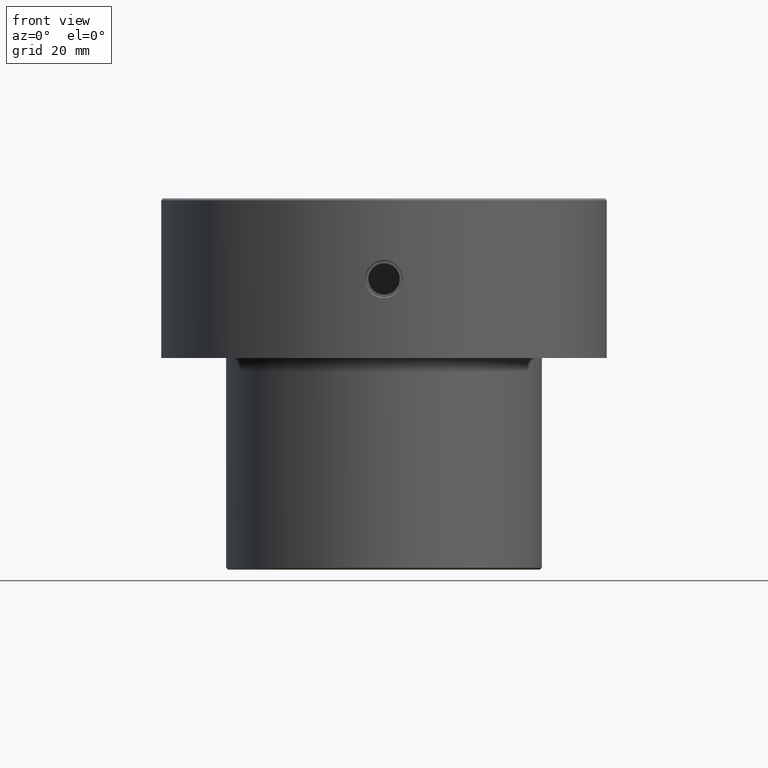
[diagram: clean part render]
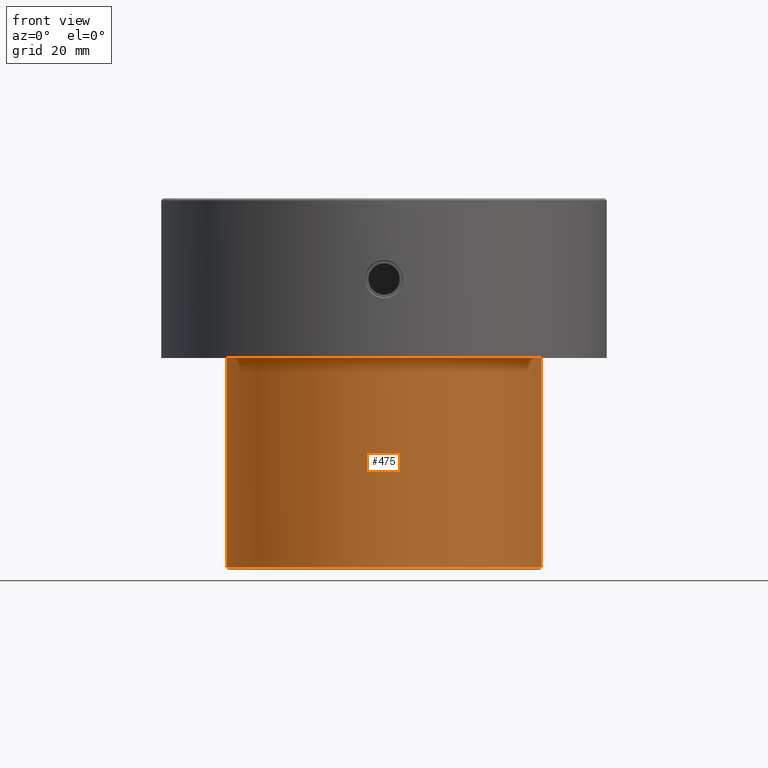
[diagram: same view with one face highlighted and labeled with its STEP entity id]
A machine part, front view. The second image highlights one B-rep face of the part: STEP entity #475.
In plain terms, the highlighted cylindrical surface (partial cylindrical patch) has radius 42.5 mm, axis along (-0, -0, 1).
Its self-contained STEP definition (entity closure, byte-faithful):
#117 = CIRCLE ( 'NONE', #610, 42.50000000000000000 ) ;
#161 = DIRECTION ( 'NONE',  ( -0.000000000000000000, -0.000000000000000000, 1.000000000000000000 ) ) ;
#234 = VERTEX_POINT ( 'NONE', #1193 ) ;
#287 = CARTESIAN_POINT ( 'NONE',  ( 0.000000000000000000, 0.000000000000000000, 0.000000000000000000 ) ) ;
#325 = VECTOR ( 'NONE', #1101, 1000.000000000000000 ) ;
#336 = AXIS2_PLACEMENT_3D ( 'NONE', #287, #667, #1050 ) ;
#368 = ORIENTED_EDGE ( 'NONE', *, *, #858, .T. ) ;
#414 = VECTOR ( 'NONE', #466, 1000.000000000000000 ) ;
#427 = VERTEX_POINT ( 'NONE', #761 ) ;
#452 = ORIENTED_EDGE ( 'NONE', *, *, #797, .F. ) ;
#466 = DIRECTION ( 'NONE',  ( -0.000000000000000000, -0.000000000000000000, 1.000000000000000000 ) ) ;
#473 = CARTESIAN_POINT ( 'NONE',  ( -42.50000000000000000, 5.204748896376250896E-15, -99.50000000000000000 ) ) ;
#475 = ADVANCED_FACE ( 'NONE', ( #1157 ), #1150, .T. ) ;
#480 = VERTEX_POINT ( 'NONE', #1143 ) ;
#493 = DIRECTION ( 'NONE',  ( 1.000000000000000000, 0.000000000000000000, 0.000000000000000000 ) ) ;
#515 = EDGE_LOOP ( 'NONE', ( #452, #1162, #368, #600 ) ) ;
#600 = ORIENTED_EDGE ( 'NONE', *, *, #1060, .F. ) ;
#610 = AXIS2_PLACEMENT_3D ( 'NONE', #1163, #161, #952 ) ;
#667 = DIRECTION ( 'NONE',  ( -0.000000000000000000, -0.000000000000000000, 1.000000000000000000 ) ) ;
#761 = CARTESIAN_POINT ( 'NONE',  ( 42.50000000000000000, 0.000000000000000000, -99.50000000000000000 ) ) ;
#797 = EDGE_CURVE ( 'NONE', #955, #234, #1117, .T. ) ;
#842 = LINE ( 'NONE', #849, #414 ) ;
#849 = CARTESIAN_POINT ( 'NONE',  ( 42.50000000000000000, 0.000000000000000000, 0.000000000000000000 ) ) ;
#858 = EDGE_CURVE ( 'NONE', #427, #480, #842, .T. ) ;
#899 = CIRCLE ( 'NONE', #1014, 42.50000000000000000 ) ;
#941 = EDGE_CURVE ( 'NONE', #955, #427, #117, .T. ) ;
#952 = DIRECTION ( 'NONE',  ( -1.000000000000000000, 0.000000000000000000, 0.000000000000000000 ) ) ;
#955 = VERTEX_POINT ( 'NONE', #473 ) ;
#975 = DIRECTION ( 'NONE',  ( -0.000000000000000000, -0.000000000000000000, 1.000000000000000000 ) ) ;
#1014 = AXIS2_PLACEMENT_3D ( 'NONE', #1177, #975, #493 ) ;
#1050 = DIRECTION ( 'NONE',  ( 1.000000000000000000, 0.000000000000000000, 0.000000000000000000 ) ) ;
#1060 = EDGE_CURVE ( 'NONE', #234, #480, #899, .T. ) ;
#1101 = DIRECTION ( 'NONE',  ( -0.000000000000000000, -0.000000000000000000, 1.000000000000000000 ) ) ;
#1117 = LINE ( 'NONE', #1131, #325 ) ;
#1131 = CARTESIAN_POINT ( 'NONE',  ( -42.50000000000000000, 5.204748896376250896E-15, 0.000000000000000000 ) ) ;
#1143 = CARTESIAN_POINT ( 'NONE',  ( 42.50000000000000000, 0.000000000000000000, -43.00000000000000000 ) ) ;
#1150 = CYLINDRICAL_SURFACE ( 'NONE', #336, 42.50000000000000000 ) ;
#1157 = FACE_OUTER_BOUND ( 'NONE', #515, .T. ) ;
#1162 = ORIENTED_EDGE ( 'NONE', *, *, #941, .T. ) ;
#1163 = CARTESIAN_POINT ( 'NONE',  ( 0.000000000000000000, 0.000000000000000000, -99.50000000000000000 ) ) ;
#1177 = CARTESIAN_POINT ( 'NONE',  ( 0.000000000000000000, 0.000000000000000000, -43.00000000000000000 ) ) ;
#1193 = CARTESIAN_POINT ( 'NONE',  ( -42.50000000000000000, 5.204748896376250896E-15, -43.00000000000000000 ) ) ;